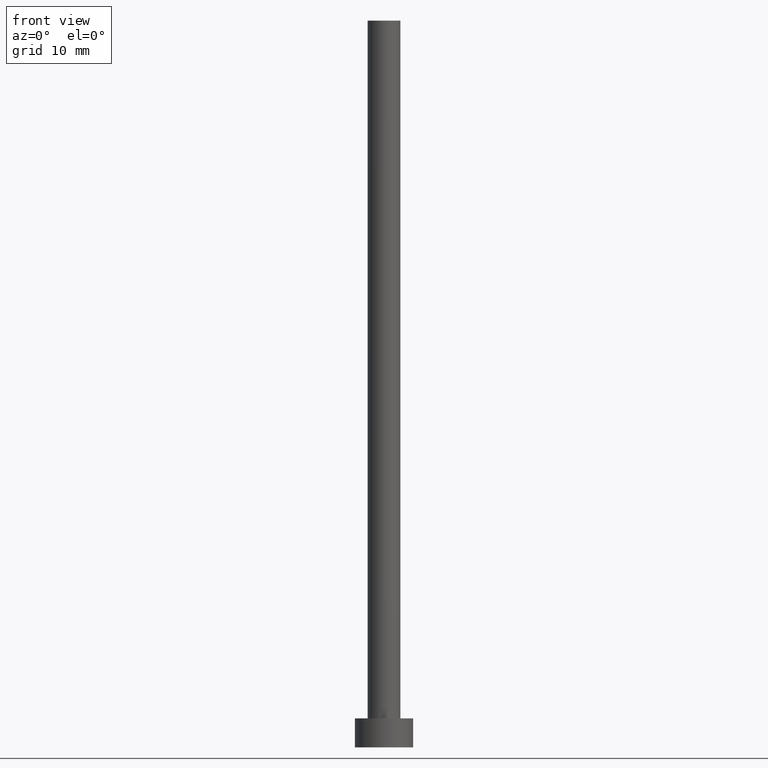
[diagram: clean part render]
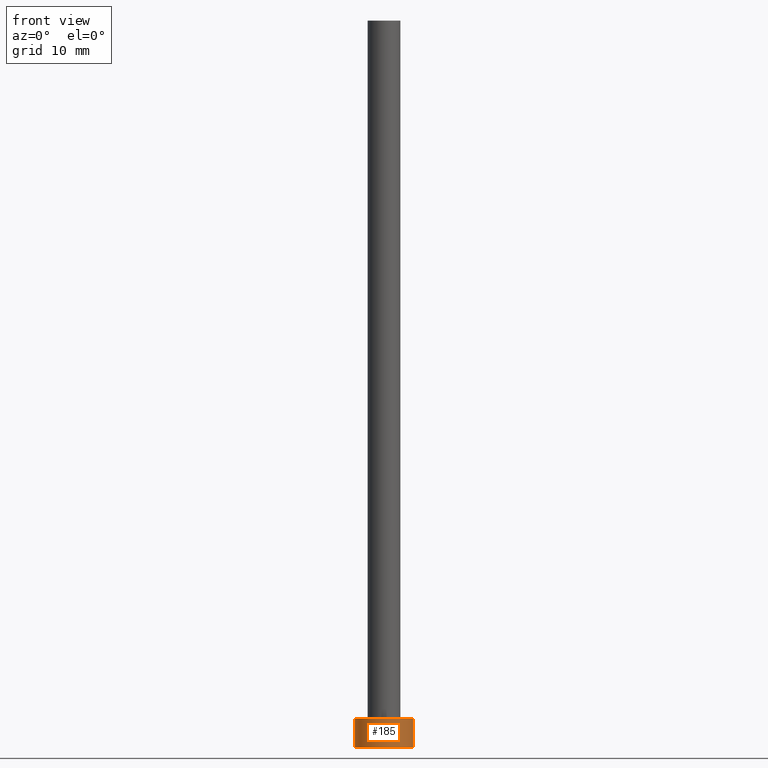
[diagram: same view with one face highlighted and labeled with its STEP entity id]
A machine part, front view. The second image highlights one B-rep face of the part: STEP entity #185.
In plain terms, the highlighted cylindrical surface (edge-blend (fillet) strip) has radius 4 mm, axis along (-0, -0, -1).
Its self-contained STEP definition (entity closure, byte-faithful):
#12 = VECTOR ( 'NONE', #70, 1000.000000000000000 ) ;
#23 = VERTEX_POINT ( 'NONE', #145 ) ;
#44 = ORIENTED_EDGE ( 'NONE', *, *, #63, .F. ) ;
#48 = ORIENTED_EDGE ( 'NONE', *, *, #162, .F. ) ;
#54 = CIRCLE ( 'NONE', #89, 4.000000000000000000 ) ;
#63 = EDGE_CURVE ( 'NONE', #129, #203, #253, .T. ) ;
#70 = DIRECTION ( 'NONE',  ( -0.000000000000000000, -0.000000000000000000, -1.000000000000000000 ) ) ;
#75 = LINE ( 'NONE', #214, #198 ) ;
#76 = EDGE_CURVE ( 'NONE', #129, #23, #208, .T. ) ;
#77 = CARTESIAN_POINT ( 'NONE',  ( 4.000000000000000000, 4.898587196589412829E-16, 0.000000000000000000 ) ) ;
#89 = AXIS2_PLACEMENT_3D ( 'NONE', #215, #100, #141 ) ;
#100 = DIRECTION ( 'NONE',  ( 0.000000000000000000, 0.000000000000000000, 1.000000000000000000 ) ) ;
#112 = EDGE_LOOP ( 'NONE', ( #48, #44, #148, #201 ) ) ;
#113 = CARTESIAN_POINT ( 'NONE',  ( -4.000000000000000000, 0.000000000000000000, 4.000000000000000000 ) ) ;
#118 = CARTESIAN_POINT ( 'NONE',  ( 0.000000000000000000, 0.000000000000000000, 4.000000000000000000 ) ) ;
#129 = VERTEX_POINT ( 'NONE', #113 ) ;
#132 = AXIS2_PLACEMENT_3D ( 'NONE', #118, #230, #175 ) ;
#141 = DIRECTION ( 'NONE',  ( 1.000000000000000000, 0.000000000000000000, 0.000000000000000000 ) ) ;
#145 = CARTESIAN_POINT ( 'NONE',  ( -4.000000000000000000, 0.000000000000000000, 0.000000000000000000 ) ) ;
#148 = ORIENTED_EDGE ( 'NONE', *, *, #76, .T. ) ;
#156 = CYLINDRICAL_SURFACE ( 'NONE', #132, 4.000000000000000000 ) ;
#160 = CARTESIAN_POINT ( 'NONE',  ( 4.000000000000000000, 4.898587196589412829E-16, 4.000000000000000000 ) ) ;
#162 = EDGE_CURVE ( 'NONE', #203, #202, #75, .T. ) ;
#168 = DIRECTION ( 'NONE',  ( 0.000000000000000000, 0.000000000000000000, 1.000000000000000000 ) ) ;
#170 = CARTESIAN_POINT ( 'NONE',  ( 0.000000000000000000, 0.000000000000000000, 4.000000000000000000 ) ) ;
#175 = DIRECTION ( 'NONE',  ( -1.000000000000000000, 0.000000000000000000, 0.000000000000000000 ) ) ;
#178 = DIRECTION ( 'NONE',  ( -0.000000000000000000, -0.000000000000000000, -1.000000000000000000 ) ) ;
#185 = ADVANCED_FACE ( 'NONE', ( #231 ), #156, .T. ) ;
#198 = VECTOR ( 'NONE', #178, 1000.000000000000000 ) ;
#201 = ORIENTED_EDGE ( 'NONE', *, *, #247, .T. ) ;
#202 = VERTEX_POINT ( 'NONE', #77 ) ;
#203 = VERTEX_POINT ( 'NONE', #160 ) ;
#208 = LINE ( 'NONE', #245, #12 ) ;
#214 = CARTESIAN_POINT ( 'NONE',  ( 4.000000000000000000, 4.898587196589412829E-16, 4.000000000000000000 ) ) ;
#215 = CARTESIAN_POINT ( 'NONE',  ( 0.000000000000000000, 0.000000000000000000, 0.000000000000000000 ) ) ;
#218 = DIRECTION ( 'NONE',  ( 1.000000000000000000, 0.000000000000000000, 0.000000000000000000 ) ) ;
#230 = DIRECTION ( 'NONE',  ( -0.000000000000000000, -0.000000000000000000, -1.000000000000000000 ) ) ;
#231 = FACE_OUTER_BOUND ( 'NONE', #112, .T. ) ;
#241 = AXIS2_PLACEMENT_3D ( 'NONE', #170, #168, #218 ) ;
#245 = CARTESIAN_POINT ( 'NONE',  ( -4.000000000000000000, 0.000000000000000000, 4.000000000000000000 ) ) ;
#247 = EDGE_CURVE ( 'NONE', #23, #202, #54, .T. ) ;
#253 = CIRCLE ( 'NONE', #241, 4.000000000000000000 ) ;